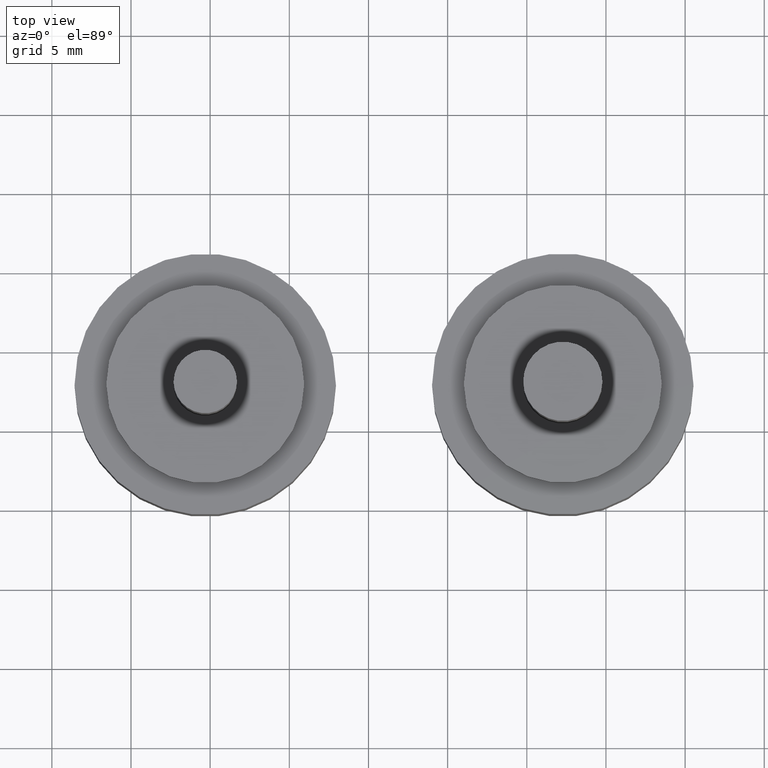
[diagram: clean part render]
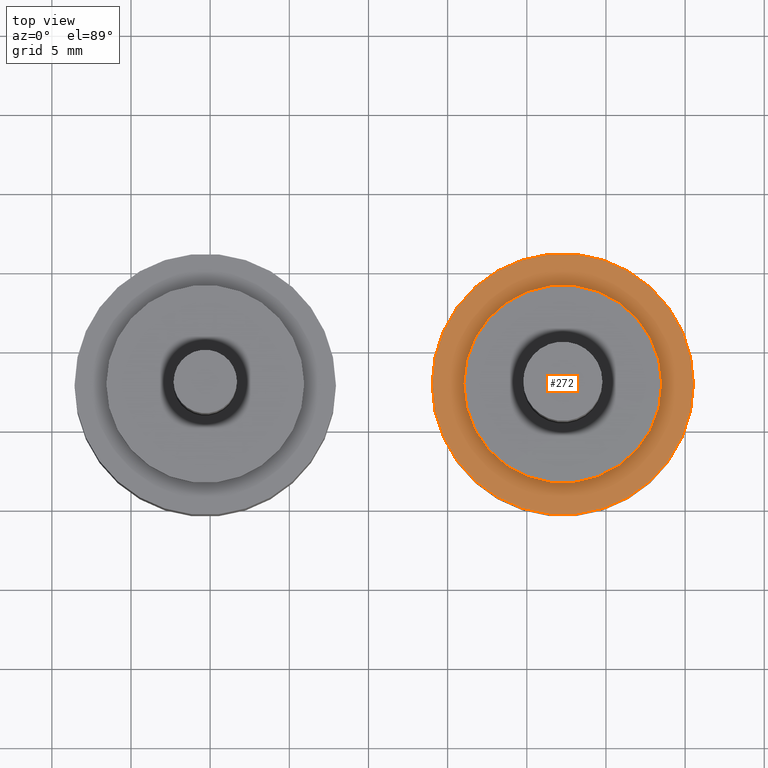
[diagram: same view with one face highlighted and labeled with its STEP entity id]
A machine part, top view. The second image highlights one B-rep face of the part: STEP entity #272.
In plain terms, the highlighted planar face has unit normal (-0, -0, 1).
Its self-contained STEP definition (entity closure, byte-faithful):
#44=PLANE('',#322);
#64=FACE_BOUND('',#132,.T.);
#88=FACE_OUTER_BOUND('',#131,.T.);
#131=EDGE_LOOP('',(#241));
#132=EDGE_LOOP('',(#242));
#152=CIRCLE('',#316,8.25);
#154=CIRCLE('',#320,6.25);
#174=VERTEX_POINT('',#488);
#176=VERTEX_POINT('',#494);
#196=EDGE_CURVE('',#174,#174,#152,.T.);
#198=EDGE_CURVE('',#176,#176,#154,.T.);
#241=ORIENTED_EDGE('',*,*,#196,.T.);
#242=ORIENTED_EDGE('',*,*,#198,.T.);
#272=ADVANCED_FACE('',(#88,#64),#44,.T.);
#316=AXIS2_PLACEMENT_3D('',#489,#408,#409);
#320=AXIS2_PLACEMENT_3D('',#495,#416,#417);
#322=AXIS2_PLACEMENT_3D('',#497,#420,#421);
#408=DIRECTION('center_axis',(0.,0.,1.));
#409=DIRECTION('ref_axis',(-1.,0.,0.));
#416=DIRECTION('center_axis',(0.,0.,-1.));
#417=DIRECTION('ref_axis',(-1.,0.,0.));
#420=DIRECTION('center_axis',(0.,0.,1.));
#421=DIRECTION('ref_axis',(1.,0.,0.));
#488=CARTESIAN_POINT('',(8.25,1.01033360929657E-15,8.));
#489=CARTESIAN_POINT('Origin',(0.,0.,8.));
#494=CARTESIAN_POINT('',(6.25,7.65404249467096E-16,8.));
#495=CARTESIAN_POINT('Origin',(0.,0.,8.));
#497=CARTESIAN_POINT('Origin',(-5.32769426885888E-16,0.,8.));